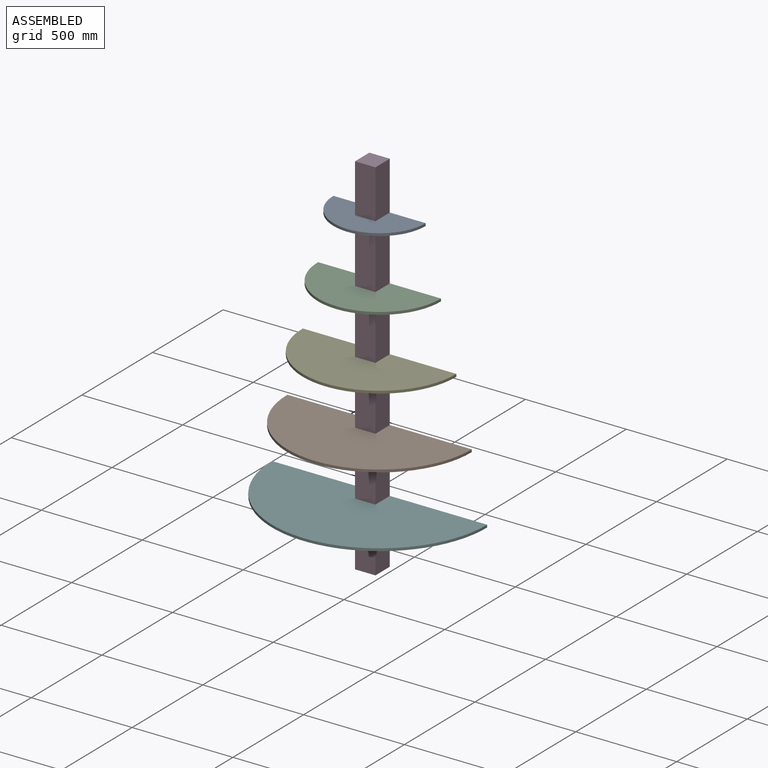
[diagram: assembled view]
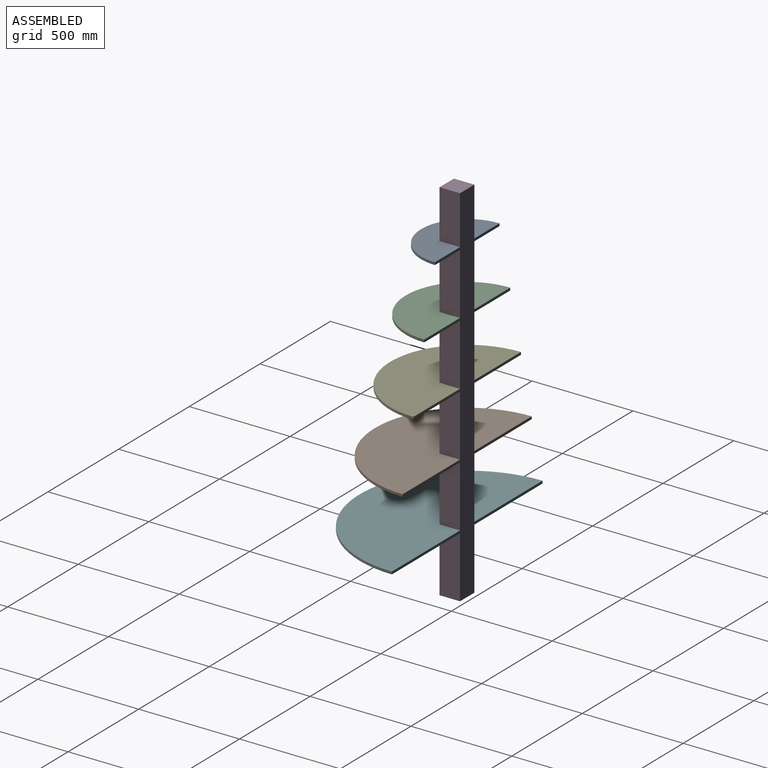
[diagram: assembled view, second angle]
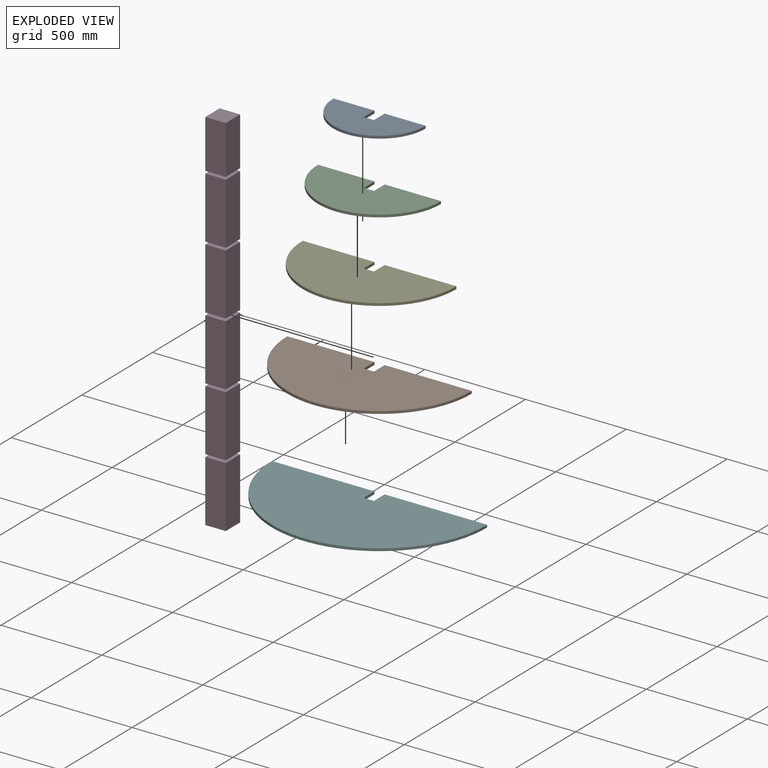
[diagram: exploded view]
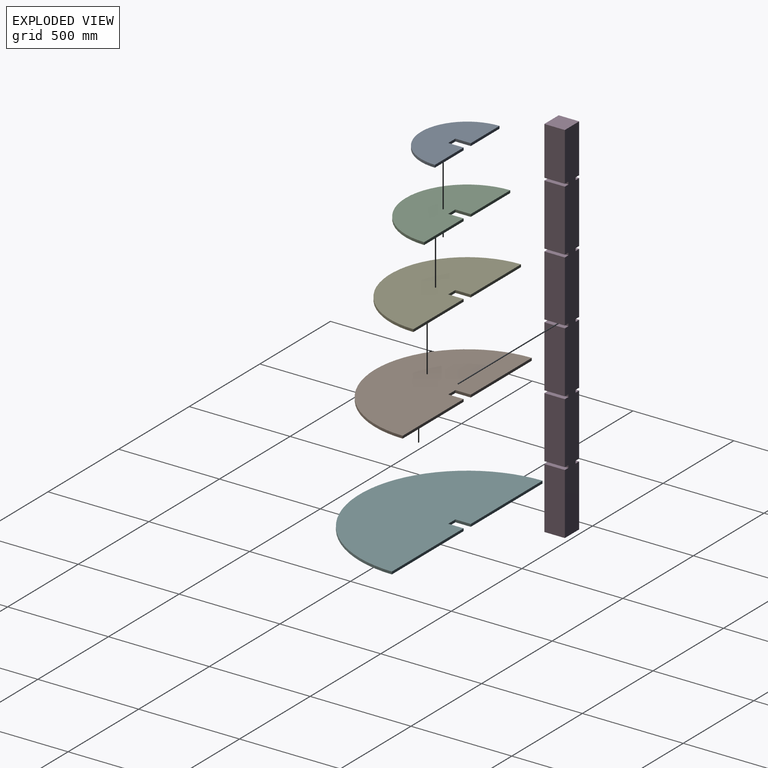
[diagram: exploded view, second angle]
ASSEMBLY  parts=6 mates=15
PART A: 8 faces, bbox 457.2x228.6x12.7 mm
  f0: plane 203.2x12.7mm, normal (0,1,0), area 2580.6mm2, adj f1,f5,f6,f7
  f1: cylinder r=228.6mm len=457.2mm, axis (0,0,-1), area 9120.7mm2, adj f0,f2,f6,f7
  f2: plane 203.2x12.7mm, normal (0,1,0), area 2580.6mm2, adj f1,f3,f6,f7
  f3: plane 76.2x12.7mm, normal (-1,0,0), area 967.7mm2, adj f2,f4,f6,f7
  f4: plane 50.8x12.7mm, normal (0,1,0), area 645.2mm2, adj f3,f5,f6,f7
  f5: plane 76.2x12.7mm, normal (1,0,0), area 967.7mm2, adj f0,f4,f6,f7
  f6: plane 457.2x228.6mm, normal (0,0,1), area 78215.7mm2, adj f0,f1,f2,f3,f4,f5
  f7: plane 457.2x228.6mm, normal (0,0,-1), area 78215.7mm2, adj f0,f1,f2,f3,f4,f5
PART B: 8 faces, bbox 914.4x457.2x12.7 mm
  f0: plane 431.8x12.7mm, normal (0,1,0), area 5483.9mm2, adj f1,f5,f6,f7
  f1: cylinder r=457.2mm len=914.4mm, axis (0,0,-1), area 18241.5mm2, adj f0,f2,f6,f7
  f2: plane 431.8x12.7mm, normal (0,1,0), area 5483.9mm2, adj f1,f3,f6,f7
  f3: plane 76.2x12.7mm, normal (-1,0,0), area 967.7mm2, adj f2,f4,f6,f7
  f4: plane 50.8x12.7mm, normal (0,1,0), area 645.2mm2, adj f3,f5,f6,f7
  f5: plane 76.2x12.7mm, normal (1,0,0), area 967.7mm2, adj f0,f4,f6,f7
  f6: plane 914.4x457.2mm, normal (0,0,1), area 324475.5mm2, adj f0,f1,f2,f3,f4,f5
  f7: plane 914.4x457.2mm, normal (0,0,-1), area 324475.5mm2, adj f0,f1,f2,f3,f4,f5
PART C: 8 faces, bbox 609.6x304.8x12.7 mm
  f0: plane 279.4x12.7mm, normal (0,1,0), area 3548.4mm2, adj f1,f5,f6,f7
  f1: cylinder r=304.8mm len=609.6mm, axis (0,0,-1), area 12161mm2, adj f0,f2,f6,f7
  f2: plane 279.4x12.7mm, normal (0,1,0), area 3548.4mm2, adj f1,f3,f6,f7
  f3: plane 76.2x12.7mm, normal (-1,0,0), area 967.7mm2, adj f2,f4,f6,f7
  f4: plane 50.8x12.7mm, normal (0,1,0), area 645.2mm2, adj f3,f5,f6,f7
  f5: plane 76.2x12.7mm, normal (1,0,0), area 967.7mm2, adj f0,f4,f6,f7
  f6: plane 609.6x304.8mm, normal (0,0,1), area 142060.8mm2, adj f0,f1,f2,f3,f4,f5
  f7: plane 609.6x304.8mm, normal (0,0,-1), area 142060.8mm2, adj f0,f1,f2,f3,f4,f5
PART D: 46 faces, bbox 101.6x101.6x1828.8 mm
  f0: plane 76.2x12.7mm, normal (-1,0,0), area 967.7mm2, adj f20,f38,f40,f44
  f1: plane 76.2x12.7mm, normal (-1,0,0), area 967.7mm2, adj f17,f18,f40,f45
  f2: plane 76.2x12.7mm, normal (1,0,0), area 967.7mm2, adj f17,f18,f40,f45
  f3: plane 76.2x12.7mm, normal (1,0,0), area 967.7mm2, adj f20,f38,f40,f44
  f4: plane 76.2x12.7mm, normal (1,0,0), area 967.7mm2, adj f29,f30,f40,f41
  f5: plane 76.2x12.7mm, normal (-1,0,0), area 967.7mm2, adj f29,f30,f40,f41
  f6: plane 76.2x12.7mm, normal (-1,0,0), area 967.7mm2, adj f32,f33,f40,f42
  f7: plane 76.2x12.7mm, normal (-1,0,0), area 967.7mm2, adj f35,f36,f40,f43
  f8: plane 304.8x101.6mm, normal (0,-1,0), area 30967.7mm2, adj f13,f18,f19,f20
  f9: plane 304.8x101.6mm, normal (0,-1,0), area 30967.7mm2, adj f21,f36,f37,f38
  f10: plane 304.8x101.6mm, normal (0,-1,0), area 30967.7mm2, adj f23,f33,f34,f35
  f11: plane 304.8x101.6mm, normal (0,-1,0), area 30967.7mm2, adj f25,f30,f31,f32
  f12: plane 241.3x101.6mm, normal (0,-1,0), area 24516.1mm2, adj f26,f27,f28,f29
  f13: plane 304.8x101.6mm, normal (-1,0,0), area 30967.7mm2, adj f8,f18,f20,f40
  f14: plane 304.8x101.6mm, normal (-1,0,0), area 30967.7mm2, adj f15,f17,f39,f40
  f15: plane 101.6x101.6mm, normal (0,0,-1), area 10322.6mm2, adj f14,f16,f39,f40
  f16: plane 304.8x101.6mm, normal (1,0,0), area 30967.7mm2, adj f15,f17,f39,f40
  f17: plane 101.6x101.6mm, normal (0,0,1), area 6451.6mm2, adj f1,f2,f14,f16,f39,f40,f45
  f18: plane 101.6x101.6mm, normal (0,0,-1), area 6451.6mm2, adj f1,f2,f8,f13,f19,f40,f45
  f19: plane 304.8x101.6mm, normal (1,0,0), area 30967.7mm2, adj f8,f18,f20,f40
  f20: plane 101.6x101.6mm, normal (0,0,1), area 6451.6mm2, adj f0,f3,f8,f13,f19,f40,f44
  f21: plane 304.8x101.6mm, normal (1,0,0), area 30967.7mm2, adj f9,f36,f38,f40
  f22: plane 76.2x12.7mm, normal (1,0,0), area 967.7mm2, adj f35,f36,f40,f43
  f23: plane 304.8x101.6mm, normal (1,0,0), area 30967.7mm2, adj f10,f33,f35,f40
  f24: plane 76.2x12.7mm, normal (1,0,0), area 967.7mm2, adj f32,f33,f40,f42
  f25: plane 304.8x101.6mm, normal (1,0,0), area 30967.7mm2, adj f11,f30,f32,f40
  f26: plane 241.3x101.6mm, normal (1,0,0), area 24516.1mm2, adj f12,f27,f29,f40
  f27: plane 101.6x101.6mm, normal (0,0,1), area 10322.6mm2, adj f12,f26,f28,f40
  f28: plane 241.3x101.6mm, normal (-1,0,0), area 24516.1mm2, adj f12,f27,f29,f40
  f29: plane 101.6x101.6mm, normal (0,0,-1), area 6451.6mm2, adj f4,f5,f12,f26,f28,f40,f41
  f30: plane 101.6x101.6mm, normal (0,0,1), area 6451.6mm2, adj f4,f5,f11,f25,f31,f40,f41
  f31: plane 304.8x101.6mm, normal (-1,0,0), area 30967.7mm2, adj f11,f30,f32,f40
  f32: plane 101.6x101.6mm, normal (0,0,-1), area 6451.6mm2, adj f6,f11,f24,f25,f31,f40,f42
  f33: plane 101.6x101.6mm, normal (0,0,1), area 6451.6mm2, adj f6,f10,f23,f24,f34,f40,f42
  f34: plane 304.8x101.6mm, normal (-1,0,0), area 30967.7mm2, adj f10,f33,f35,f40
  f35: plane 101.6x101.6mm, normal (0,0,-1), area 6451.6mm2, adj f7,f10,f22,f23,f34,f40,f43
  f36: plane 101.6x101.6mm, normal (0,0,1), area 6451.6mm2, adj f7,f9,f21,f22,f37,f40,f43
  f37: plane 304.8x101.6mm, normal (-1,0,0), area 30967.7mm2, adj f9,f36,f38,f40
  f38: plane 101.6x101.6mm, normal (0,0,-1), area 6451.6mm2, adj f0,f3,f9,f21,f37,f40,f44
  f39: plane 304.8x101.6mm, normal (0,-1,0), area 30967.7mm2, adj f14,f15,f16,f17
  f40: plane 1828.8x101.6mm, normal (0,1,0), area 182580.3mm2, adj f0,f1,f2,f3,f4,f5,f6,f7
  f41: plane 50.8x12.7mm, normal (0,-1,0), area 645.2mm2, adj f4,f5,f29,f30
  f42: plane 50.8x12.7mm, normal (0,-1,0), area 645.2mm2, adj f6,f24,f32,f33
  f43: plane 50.8x12.7mm, normal (0,-1,0), area 645.2mm2, adj f7,f22,f35,f36
  f44: plane 50.8x12.7mm, normal (0,-1,0), area 645.2mm2, adj f0,f3,f20,f38
  f45: plane 50.8x12.7mm, normal (0,-1,0), area 645.2mm2, adj f1,f2,f17,f18
PART E: 8 faces, bbox 762x381x12.7 mm
  f0: plane 355.6x12.7mm, normal (0,1,0), area 4516.1mm2, adj f1,f5,f6,f7
  f1: cylinder r=381mm len=762mm, axis (0,0,-1), area 15201.2mm2, adj f0,f2,f6,f7
  f2: plane 355.6x12.7mm, normal (0,1,0), area 4516.1mm2, adj f1,f3,f6,f7
  f3: plane 76.2x12.7mm, normal (-1,0,0), area 967.7mm2, adj f2,f4,f6,f7
  f4: plane 50.8x12.7mm, normal (0,1,0), area 645.2mm2, adj f3,f5,f6,f7
  f5: plane 76.2x12.7mm, normal (1,0,0), area 967.7mm2, adj f0,f4,f6,f7
  f6: plane 762x381mm, normal (0,0,1), area 224147.4mm2, adj f0,f1,f2,f3,f4,f5
  f7: plane 762x381mm, normal (0,0,-1), area 224147.4mm2, adj f0,f1,f2,f3,f4,f5
PART F: 8 faces, bbox 1066.8x533.4x12.7 mm
  f0: plane 508x12.7mm, normal (0,1,0), area 6451.6mm2, adj f1,f5,f6,f7
  f1: cylinder r=533.4mm len=1066.8mm, axis (0,0,-1), area 21281.7mm2, adj f0,f2,f6,f7
  f2: plane 508x12.7mm, normal (0,1,0), area 6451.6mm2, adj f1,f3,f6,f7
  f3: plane 76.2x12.7mm, normal (-1,0,0), area 967.7mm2, adj f2,f4,f6,f7
  f4: plane 50.8x12.7mm, normal (0,1,0), area 645.2mm2, adj f3,f5,f6,f7
  f5: plane 76.2x12.7mm, normal (1,0,0), area 967.7mm2, adj f0,f4,f6,f7
  f6: plane 1066.8x533.4mm, normal (0,0,1), area 443045mm2, adj f0,f1,f2,f3,f4,f5
  f7: plane 1066.8x533.4mm, normal (0,0,-1), area 443045mm2, adj f0,f1,f2,f3,f4,f5
PLACE A t=(-146.93,636,1468.3)mm
PLACE B t=(-375.53,636,515.8)mm
PLACE C t=(-223.13,636,1150.8)mm
PLACE D t=(30.87,636,-106.5)mm fixed
PLACE E t=(-299.33,636,833.3)mm
PLACE F t=(-451.73,636,198.3)mm
MATE planar C.f6 <-> D.f32  axis (0,0,1) through (81.67,504.15,1163.5)mm
MATE planar B.f6 <-> D.f38  axis (0,0,1) through (81.67,440.1,528.5)mm
MATE planar F.f5 <-> D.f1  axis (1,0,0) through (56.27,597.9,204.65)mm
MATE planar A.f0 <-> D.f40  axis (0,1,0) through (-45.33,636,1474.65)mm
MATE planar E.f5 <-> D.f7  axis (1,0,0) through (56.27,597.9,839.65)mm
MATE planar F.f6 <-> D.f18  axis (0,0,1) through (81.67,407.97,211)mm
MATE planar C.f3 <-> D.f24  axis (-1,0,0) through (107.07,597.9,1157.15)mm
MATE planar D.f40 <-> E.f2  axis (0,1,0) through (81.67,636,807.34)mm
MATE planar A.f5 <-> D.f5  axis (1,0,0) through (56.27,597.9,1474.65)mm
MATE planar B.f2 <-> D.f40  axis (0,1,0) through (322.97,636,522.15)mm
MATE planar E.f7 <-> D.f36  axis (0,0,-1) through (81.67,472.16,833.3)mm
MATE planar A.f6 <-> D.f29  axis (0,0,1) through (81.67,536.06,1481)mm
MATE planar C.f2 <-> D.f40  axis (0,1,0) through (246.77,636,1157.15)mm
MATE planar F.f4 <-> D.f45  axis (0,1,0) through (81.67,559.8,204.65)mm
MATE planar B.f5 <-> D.f0  axis (1,0,0) through (56.27,597.9,522.15)mm
